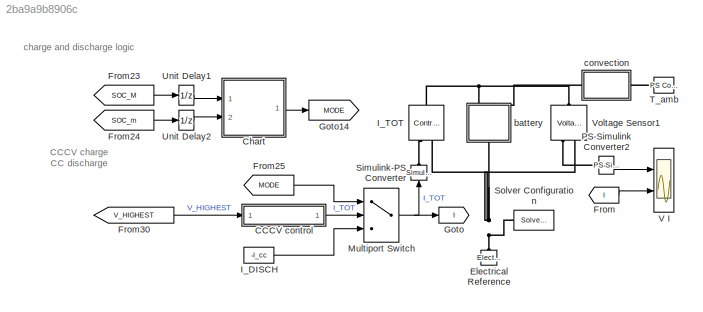
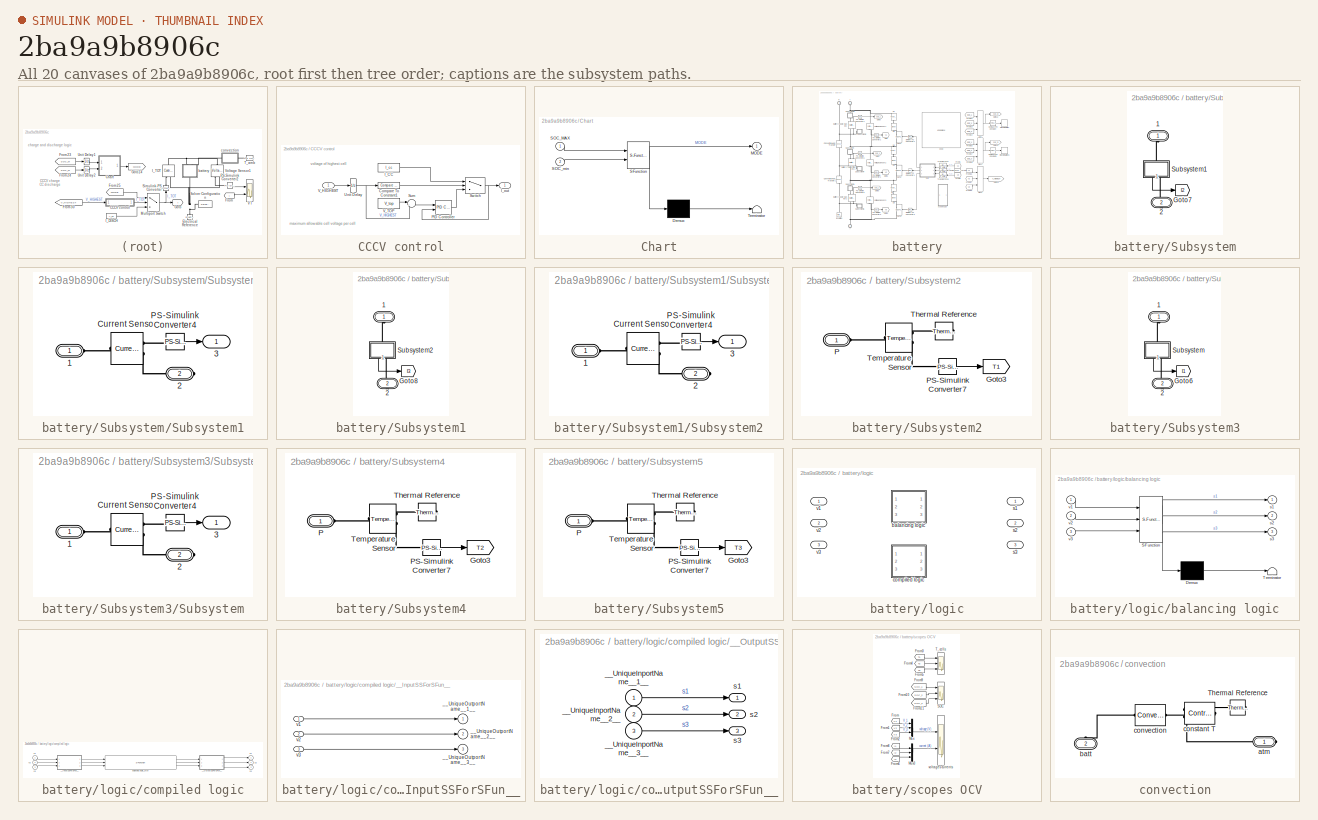
[diagram: thumbnail index - all 20 canvases of the model, root first then tree order]
MODEL slx_2ba9a9b8906c
KIND model
CONFIG AbsTol = 1e-3
CONFIG EnableMultiTasking = on
CONFIG FixedStep = auto
CONFIG MaxStep = .5
CONFIG MinStep = auto
CONFIG PreLoadFcn = passiveBalancing_ini;
CONFIG RelTol = 1e-3
CONFIG SampleTimeConstraint = Unconstrained
CONFIG Solver = ode23t
CONFIG SolverName = ode23t
CONFIG StartTime = 0.0
CONFIG StopTime = 3600 * 4
BLOCK [SubSystem] CCCV control
  Ports = [1, 1]
  RequestExecContextInheritance = off
BLOCK [Reference] CCCV control/Compare To Constant1  REF=simulink/Logic and Bit
Operations/Compare
To Constant
  Ports = [1, 1]
  SourceBlock = simulink/Logic and Bit\nOperations/Compare\nTo Constant
  SourceProductBaseCode = SL
  SourceProductName = Simulink
  SourceType = Compare To Constant
BLOCK [Constant] CCCV control/I_CC
  Value = I_cc
BLOCK [Outport] CCCV control/I_out
  IconDisplay = Port number
BLOCK [Reference] CCCV control/PID Controller  REF=simulink/Continuous/PID Controller
  Ports = [2, 1]
  SourceBlock = simulink/Continuous/PID Controller
  SourceProductBaseCode = SL
  SourceProductName = Simulink
  SourceType = PID 1dof
BLOCK [Sum] CCCV control/Sum
  IconShape = round
  InputSameDT = off
  Inputs = |+-
  OutDataTypeStr = Inherit: Inherit via internal rule
  Ports = [2, 1]
  SaturateOnIntegerOverflow = off
BLOCK [Switch] CCCV control/Switch
  Criteria = u2 > Threshold
  InputSameDT = off
  SaturateOnIntegerOverflow = off
BLOCK [UnitDelay] CCCV control/Unit Delay
  HasFrameUpgradeWarning = on
  SampleTime = -1
BLOCK [Inport] CCCV control/V_HIGHEST
  IconDisplay = Port number
BLOCK [Constant] CCCV control/V_TOP
  Value = V_top
BLOCK [SubSystem] Chart
  BlockKeywords = __PRM__SERIALIZED__DATA__:Stateflow Chart,Stateflow Diagram
  ErrorFcn = Stateflow.Translate.translate
  PermitHierarchicalResolution = ExplicitOnly
  Ports = [2, 1]
  RequestExecContextInheritance = off
  SFBlockType = Chart
  TreatAsAtomicUnit = on
BLOCK [Demux] Chart/ Demux 
  Outputs = 1
  Ports = [1, 1]
BLOCK [S-Function] Chart/ SFunction 
  EnableBusSupport = on
  FunctionName = sf_sfun
  PortCounts = [2 2]
  Ports = [2, 2]
  SFcnIsStateOwnerBlock = off
  SFunctionDeploymentMode = off
  Tag = Stateflow S-Function 3
BLOCK [Terminator] Chart/ Terminator 
BLOCK [Outport] Chart/MODE
  IconDisplay = Port number
BLOCK [Inport] Chart/SOC_MAX
  IconDisplay = Port number
BLOCK [Inport] Chart/SOC_min
  IconDisplay = Port number
  Port = 2
BLOCK [Reference] Electrical Reference  REF=fl_lib/Electrical/Electrical Elements/Electrical Reference
  Ports = [0, 0, 0, 0, 0, 1]
  SourceBlock = fl_lib/Electrical/Electrical Elements/Electrical Reference
  SourceProductBaseCode = SS
  SourceProductName = Simscape
  SourceType = Electrical Reference
BLOCK [From] From
  GotoTag = I
BLOCK [From] From23
  GotoTag = SOC_M
  TagVisibility = global
BLOCK [From] From24
  GotoTag = SOC_m
  TagVisibility = global
BLOCK [From] From25
  GotoTag = MODE
BLOCK [From] From30
  GotoTag = V_HIGHEST
  TagVisibility = global
BLOCK [Goto] Goto
  GotoTag = I
BLOCK [Goto] Goto14
  GotoTag = MODE
BLOCK [Constant] I_DISCH
  Value = -I_cc
BLOCK [Reference] I_TOT  REF=fl_lib/Electrical/Electrical Sources/Controlled Current
Source
  Ports = [0, 0, 0, 0, 0, 1, 2]
  SourceBlock = fl_lib/Electrical/Electrical Sources/Controlled Current\nSource
  SourceProductBaseCode = SS
  SourceProductName = Simscape
  SourceType = Controlled Current\nSource
BLOCK [MultiPortSwitch] Multiport Switch
  DataPortIndices = {1,2}
  DataPortOrder = Specify indices
  DiagnosticForDefault = None
  InputSameDT = off
  Ports = [3, 1]
  SaturateOnIntegerOverflow = off
BLOCK [Reference] PS-Simulink Converter2  REF=nesl_utility/PS-Simulink
Converter
  Ports = [0, 1, 0, 0, 0, 1]
  SourceBlock = nesl_utility/PS-Simulink\nConverter
  SourceProductBaseCode = SS
  SourceProductName = Simscape
  SourceType = PS-Simulink\nConverter
BLOCK [Reference] Simulink-PS Converter  REF=nesl_utility/Simulink-PS
Converter
  Ports = [1, 0, 0, 0, 0, 0, 1]
  SourceBlock = nesl_utility/Simulink-PS\nConverter
  SourceProductBaseCode = SS
  SourceProductName = Simscape
  SourceType = Simulink-PS\nConverter
BLOCK [Reference] Solver Configuration  REF=nesl_utility/Solver
Configuration
  Ports = [0, 0, 0, 0, 0, 0, 1]
  SourceBlock = nesl_utility/Solver\nConfiguration
  SourceProductBaseCode = SS
  SourceProductName = Simscape
  SourceType = Solver\nConfiguration
BLOCK [Reference] T_amb  REF=fl_lib/Physical Signals/Sources/PS Constant
  Ports = [0, 0, 0, 0, 0, 0, 1]
  SourceBlock = fl_lib/Physical Signals/Sources/PS Constant
  SourceProductBaseCode = SS
  SourceProductName = Simscape
  SourceType = PS Constant
BLOCK [UnitDelay] Unit Delay1
  HasFrameUpgradeWarning = on
  InitialCondition = 1
  SampleTime = -1
BLOCK [UnitDelay] Unit Delay2
  HasFrameUpgradeWarning = on
  InitialCondition = 1
  SampleTime = -1
BLOCK [Scope] V I
  Floating = off
  NumInputPorts = 2
  Ports = [2]
  ScopeSpecificationString = Simulink.scopes.TimeScopeBlockCfg('CurrentConfiguration', extmgr.ConfigurationSet(extmgr.Configuration('Core','General UI',true),extmgr.Configuration('Core','Source UI',true),extmgr.Configuration('Sources','WiredSimulink',true,'DataLoggingVariableName','ScopeData1'),extmgr.Configuration('Visuals','Time Domain',true,'SerializedDisplays',{struct('MinYLimReal','10.37584','MaxYLimReal','12.50805','YLa...<+2413ch>
BLOCK [Reference] Voltage Sensor1  REF=fl_lib/Electrical/Electrical Sensors/Voltage Sensor
  Ports = [0, 0, 0, 0, 0, 1, 2]
  SourceBlock = fl_lib/Electrical/Electrical Sensors/Voltage Sensor
  SourceProductBaseCode = SS
  SourceProductName = Simscape
  SourceType = Voltage Sensor
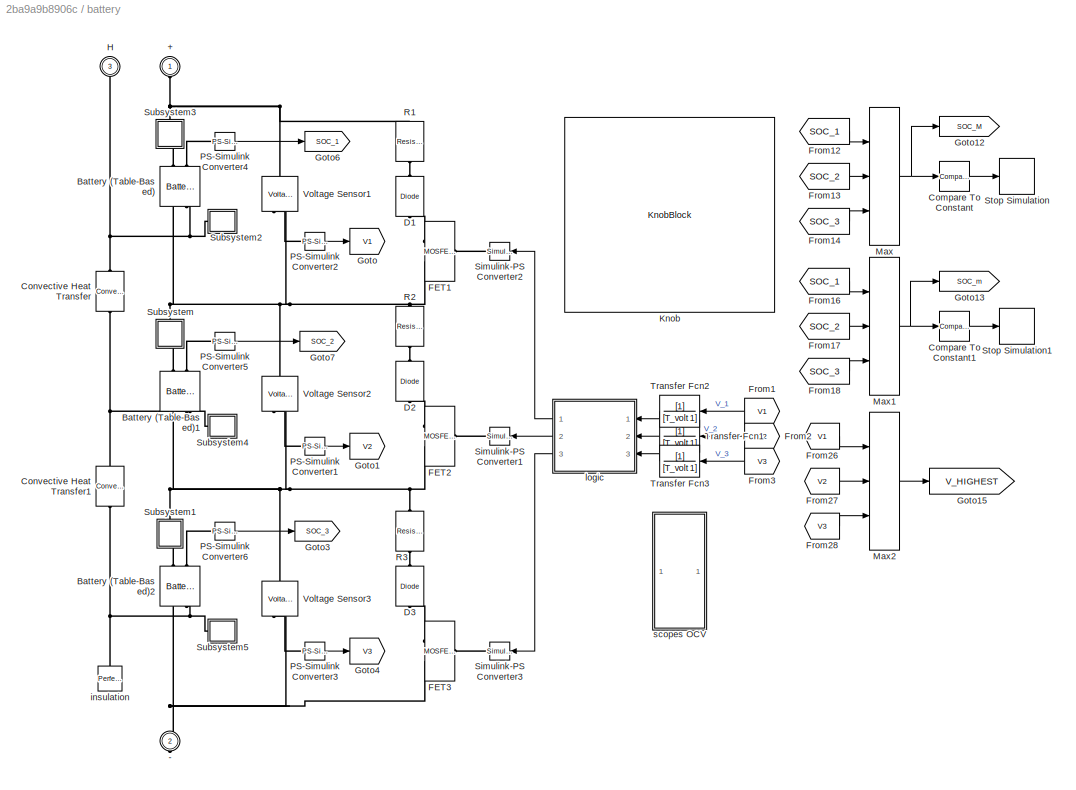
BLOCK [SubSystem] battery
  Ports = [0, 0, 0, 0, 0, 2, 1]
  RequestExecContextInheritance = off
BLOCK [PMIOPort] battery/+
  Side = Left
BLOCK [PMIOPort] battery/-
  Port = 2
  Side = Right
BLOCK [Reference] battery/Battery (Table-Based)  REF=ee_lib/Sources/Battery
(Table-Based)
  Ports = [0, 0, 0, 0, 0, 2, 2]
  SourceBlock = ee_lib/Sources/Battery\n(Table-Based)
  SourceProductBaseCode = PS
  SourceProductName = Simscape Electrical
  SourceType = Battery\n(Table-Based)
BLOCK [Reference] battery/Battery (Table-Based)1  REF=ee_lib/Sources/Battery
(Table-Based)
  Ports = [0, 0, 0, 0, 0, 2, 2]
  SourceBlock = ee_lib/Sources/Battery\n(Table-Based)
  SourceProductBaseCode = PS
  SourceProductName = Simscape Electrical
  SourceType = Battery\n(Table-Based)
BLOCK [Reference] battery/Battery (Table-Based)2  REF=ee_lib/Sources/Battery
(Table-Based)
  Ports = [0, 0, 0, 0, 0, 2, 2]
  SourceBlock = ee_lib/Sources/Battery\n(Table-Based)
  SourceProductBaseCode = PS
  SourceProductName = Simscape Electrical
  SourceType = Battery\n(Table-Based)
BLOCK [Reference] battery/Compare To Constant  REF=simulink/Logic and Bit
Operations/Compare
To Constant
  Ports = [1, 1]
  SourceBlock = simulink/Logic and Bit\nOperations/Compare\nTo Constant
  SourceProductBaseCode = SL
  SourceProductName = Simulink
  SourceType = Compare To Constant
BLOCK [Reference] battery/Compare To Constant1  REF=simulink/Logic and Bit
Operations/Compare
To Constant
  Ports = [1, 1]
  SourceBlock = simulink/Logic and Bit\nOperations/Compare\nTo Constant
  SourceProductBaseCode = SL
  SourceProductName = Simulink
  SourceType = Compare To Constant
BLOCK [Reference] battery/Convective Heat Transfer  REF=fl_lib/Thermal/Thermal Elements/Convective Heat
Transfer
  Ports = [0, 0, 0, 0, 0, 1, 1]
  SourceBlock = fl_lib/Thermal/Thermal Elements/Convective Heat\nTransfer
  SourceProductBaseCode = SS
  SourceProductName = Simscape
  SourceType = Convective Heat\nTransfer
BLOCK [Reference] battery/Convective Heat Transfer1  REF=fl_lib/Thermal/Thermal Elements/Convective Heat
Transfer
  Ports = [0, 0, 0, 0, 0, 1, 1]
  SourceBlock = fl_lib/Thermal/Thermal Elements/Convective Heat\nTransfer
  SourceProductBaseCode = SS
  SourceProductName = Simscape
  SourceType = Convective Heat\nTransfer
BLOCK [Reference] battery/D1  REF=fl_lib/Electrical/Electrical Elements/Diode
  Ports = [0, 0, 0, 0, 0, 1, 1]
  SourceBlock = fl_lib/Electrical/Electrical Elements/Diode
  SourceProductBaseCode = SS
  SourceProductName = Simscape
  SourceType = Diode
BLOCK [Reference] battery/D2  REF=fl_lib/Electrical/Electrical Elements/Diode
  Ports = [0, 0, 0, 0, 0, 1, 1]
  SourceBlock = fl_lib/Electrical/Electrical Elements/Diode
  SourceProductBaseCode = SS
  SourceProductName = Simscape
  SourceType = Diode
BLOCK [Reference] battery/D3  REF=fl_lib/Electrical/Electrical Elements/Diode
  Ports = [0, 0, 0, 0, 0, 1, 1]
  SourceBlock = fl_lib/Electrical/Electrical Elements/Diode
  SourceProductBaseCode = SS
  SourceProductName = Simscape
  SourceType = Diode
BLOCK [Reference] battery/FET1  REF=ee_lib/Semiconductors &
Converters/MOSFET
(Ideal,
Switching)
  Ports = [0, 0, 0, 0, 0, 1, 2]
  SourceBlock = ee_lib/Semiconductors &\nConverters/MOSFET\n(Ideal,\nSwitching)
  SourceProductBaseCode = PS
  SourceProductName = Simscape Electrical
  SourceType = MOSFET\n(Ideal,\nSwitching)
BLOCK [Reference] battery/FET2  REF=ee_lib/Semiconductors &
Converters/MOSFET
(Ideal,
Switching)
  Ports = [0, 0, 0, 0, 0, 1, 2]
  SourceBlock = ee_lib/Semiconductors &\nConverters/MOSFET\n(Ideal,\nSwitching)
  SourceProductBaseCode = PS
  SourceProductName = Simscape Electrical
  SourceType = MOSFET\n(Ideal,\nSwitching)
BLOCK [Reference] battery/FET3  REF=ee_lib/Semiconductors &
Converters/MOSFET
(Ideal,
Switching)
  Ports = [0, 0, 0, 0, 0, 1, 2]
  SourceBlock = ee_lib/Semiconductors &\nConverters/MOSFET\n(Ideal,\nSwitching)
  SourceProductBaseCode = PS
  SourceProductName = Simscape Electrical
  SourceType = MOSFET\n(Ideal,\nSwitching)
BLOCK [From] battery/From1
  GotoTag = V1
  TagVisibility = global
BLOCK [From] battery/From12
  GotoTag = SOC_1
  TagVisibility = global
BLOCK [From] battery/From13
  GotoTag = SOC_2
  TagVisibility = global
BLOCK [From] battery/From14
  GotoTag = SOC_3
  TagVisibility = global
BLOCK [From] battery/From16
  GotoTag = SOC_1
  TagVisibility = global
BLOCK [From] battery/From17
  GotoTag = SOC_2
  TagVisibility = global
BLOCK [From] battery/From18
  GotoTag = SOC_3
  TagVisibility = global
BLOCK [From] battery/From2
  GotoTag = V2
  TagVisibility = global
BLOCK [From] battery/From26
  GotoTag = V1
  TagVisibility = global
BLOCK [From] battery/From27
  GotoTag = V2
  TagVisibility = global
BLOCK [From] battery/From28
  GotoTag = V3
  TagVisibility = global
BLOCK [From] battery/From3
  GotoTag = V3
  TagVisibility = global
BLOCK [Goto] battery/Goto
  GotoTag = V1
  TagVisibility = global
BLOCK [Goto] battery/Goto1
  GotoTag = V2
  TagVisibility = global
BLOCK [Goto] battery/Goto12
  GotoTag = SOC_M
  TagVisibility = global
BLOCK [Goto] battery/Goto13
  GotoTag = SOC_m
  TagVisibility = global
BLOCK [Goto] battery/Goto15
  GotoTag = V_HIGHEST
  TagVisibility = global
BLOCK [Goto] battery/Goto3
  GotoTag = SOC_3
  TagVisibility = global
BLOCK [Goto] battery/Goto4
  GotoTag = V3
  TagVisibility = global
BLOCK [Goto] battery/Goto6
  GotoTag = SOC_1
  TagVisibility = global
BLOCK [Goto] battery/Goto7
  GotoTag = SOC_2
  TagVisibility = global
BLOCK [PMIOPort] battery/H
  Port = 3
  Side = Left
BLOCK [KnobBlock] battery/Knob
  ScaleMax = 40
  ScaleMin = 2
  TickInterval = 2
BLOCK [MinMax] battery/Max
  Function = max
  InputSameDT = off
  Inputs = 3
  Ports = [3, 1]
  SaturateOnIntegerOverflow = off
BLOCK [MinMax] battery/Max1
  InputSameDT = off
  Inputs = 3
  Ports = [3, 1]
  SaturateOnIntegerOverflow = off
BLOCK [MinMax] battery/Max2
  Function = max
  InputSameDT = off
  Inputs = 3
  Ports = [3, 1]
  SaturateOnIntegerOverflow = off
BLOCK [Reference] battery/PS-Simulink Converter1  REF=nesl_utility/PS-Simulink
Converter
  Ports = [0, 1, 0, 0, 0, 1]
  SourceBlock = nesl_utility/PS-Simulink\nConverter
  SourceProductBaseCode = SS
  SourceProductName = Simscape
  SourceType = PS-Simulink\nConverter
BLOCK [Reference] battery/PS-Simulink Converter2  REF=nesl_utility/PS-Simulink
Converter
  Ports = [0, 1, 0, 0, 0, 1]
  SourceBlock = nesl_utility/PS-Simulink\nConverter
  SourceProductBaseCode = SS
  SourceProductName = Simscape
  SourceType = PS-Simulink\nConverter
BLOCK [Reference] battery/PS-Simulink Converter3  REF=nesl_utility/PS-Simulink
Converter
  Ports = [0, 1, 0, 0, 0, 1]
  SourceBlock = nesl_utility/PS-Simulink\nConverter
  SourceProductBaseCode = SS
  SourceProductName = Simscape
  SourceType = PS-Simulink\nConverter
BLOCK [Reference] battery/PS-Simulink Converter4  REF=nesl_utility/PS-Simulink
Converter
  Ports = [0, 1, 0, 0, 0, 1]
  SourceBlock = nesl_utility/PS-Simulink\nConverter
  SourceProductBaseCode = SS
  SourceProductName = Simscape
  SourceType = PS-Simulink\nConverter
BLOCK [Reference] battery/PS-Simulink Converter5  REF=nesl_utility/PS-Simulink
Converter
  Ports = [0, 1, 0, 0, 0, 1]
  SourceBlock = nesl_utility/PS-Simulink\nConverter
  SourceProductBaseCode = SS
  SourceProductName = Simscape
  SourceType = PS-Simulink\nConverter
BLOCK [Reference] battery/PS-Simulink Converter6  REF=nesl_utility/PS-Simulink
Converter
  Ports = [0, 1, 0, 0, 0, 1]
  SourceBlock = nesl_utility/PS-Simulink\nConverter
  SourceProductBaseCode = SS
  SourceProductName = Simscape
  SourceType = PS-Simulink\nConverter
BLOCK [Reference] battery/R1  REF=fl_lib/Electrical/Electrical Elements/Resistor
  Ports = [0, 0, 0, 0, 0, 1, 1]
  SourceBlock = fl_lib/Electrical/Electrical Elements/Resistor
  SourceProductBaseCode = SS
  SourceProductName = Simscape
  SourceType = Resistor
BLOCK [Reference] battery/R2  REF=fl_lib/Electrical/Electrical Elements/Resistor
  Ports = [0, 0, 0, 0, 0, 1, 1]
  SourceBlock = fl_lib/Electrical/Electrical Elements/Resistor
  SourceProductBaseCode = SS
  SourceProductName = Simscape
  SourceType = Resistor
BLOCK [Reference] battery/R3  REF=fl_lib/Electrical/Electrical Elements/Resistor
  Ports = [0, 0, 0, 0, 0, 1, 1]
  SourceBlock = fl_lib/Electrical/Electrical Elements/Resistor
  SourceProductBaseCode = SS
  SourceProductName = Simscape
  SourceType = Resistor
BLOCK [Reference] battery/Simulink-PS Converter1  REF=nesl_utility/Simulink-PS
Converter
  Ports = [1, 0, 0, 0, 0, 0, 1]
  SourceBlock = nesl_utility/Simulink-PS\nConverter
  SourceProductBaseCode = SS
  SourceProductName = Simscape
  SourceType = Simulink-PS\nConverter
BLOCK [Reference] battery/Simulink-PS Converter2  REF=nesl_utility/Simulink-PS
Converter
  Ports = [1, 0, 0, 0, 0, 0, 1]
  SourceBlock = nesl_utility/Simulink-PS\nConverter
  SourceProductBaseCode = SS
  SourceProductName = Simscape
  SourceType = Simulink-PS\nConverter
BLOCK [Reference] battery/Simulink-PS Converter3  REF=nesl_utility/Simulink-PS
Converter
  Ports = [1, 0, 0, 0, 0, 0, 1]
  SourceBlock = nesl_utility/Simulink-PS\nConverter
  SourceProductBaseCode = SS
  SourceProductName = Simscape
  SourceType = Simulink-PS\nConverter
BLOCK [Stop] battery/Stop Simulation
BLOCK [Stop] battery/Stop Simulation1
BLOCK [SubSystem] battery/Subsystem
  Ports = [0, 0, 0, 0, 0, 1, 1]
  RequestExecContextInheritance = off
BLOCK [PMIOPort] battery/Subsystem/1
  Side = Left
BLOCK [PMIOPort] battery/Subsystem/2
  Port = 2
  Side = Right
BLOCK [Goto] battery/Subsystem/Goto7
  GotoTag = I2
  TagVisibility = global
BLOCK [SubSystem] battery/Subsystem/Subsystem1
  Ports = [0, 1, 0, 0, 0, 1, 1]
  RequestExecContextInheritance = off
BLOCK [PMIOPort] battery/Subsystem/Subsystem1/1
  Side = Left
BLOCK [PMIOPort] battery/Subsystem/Subsystem1/2
  Port = 2
  Side = Right
BLOCK [Outport] battery/Subsystem/Subsystem1/3
  IconDisplay = Port number
  VectorParamsAs1DForOutWhenUnconnected = off
BLOCK [Reference] battery/Subsystem/Subsystem1/Current Sensor  REF=fl_lib/Electrical/Electrical Sensors/Current Sensor
  Ports = [0, 0, 0, 0, 0, 1, 2]
  SourceBlock = fl_lib/Electrical/Electrical Sensors/Current Sensor
  SourceProductBaseCode = SS
  SourceProductName = Simscape
  SourceType = Current Sensor
BLOCK [Reference] battery/Subsystem/Subsystem1/PS-Simulink Converter4  REF=nesl_utility/PS-Simulink
Converter
  Ports = [0, 1, 0, 0, 0, 1]
  SourceBlock = nesl_utility/PS-Simulink\nConverter
  SourceProductBaseCode = SS
  SourceProductName = Simscape
  SourceType = PS-Simulink\nConverter
BLOCK [SubSystem] battery/Subsystem1
  Ports = [0, 0, 0, 0, 0, 1, 1]
  RequestExecContextInheritance = off
BLOCK [PMIOPort] battery/Subsystem1/1
  Side = Left
BLOCK [PMIOPort] battery/Subsystem1/2
  Port = 2
  Side = Right
BLOCK [Goto] battery/Subsystem1/Goto8
  GotoTag = I3
  TagVisibility = global
BLOCK [SubSystem] battery/Subsystem1/Subsystem2
  Ports = [0, 1, 0, 0, 0, 1, 1]
  RequestExecContextInheritance = off
BLOCK [PMIOPort] battery/Subsystem1/Subsystem2/1
  Side = Left
BLOCK [PMIOPort] battery/Subsystem1/Subsystem2/2
  Port = 2
  Side = Right
BLOCK [Outport] battery/Subsystem1/Subsystem2/3
  IconDisplay = Port number
  VectorParamsAs1DForOutWhenUnconnected = off
BLOCK [Reference] battery/Subsystem1/Subsystem2/Current Sensor  REF=fl_lib/Electrical/Electrical Sensors/Current Sensor
  Ports = [0, 0, 0, 0, 0, 1, 2]
  SourceBlock = fl_lib/Electrical/Electrical Sensors/Current Sensor
  SourceProductBaseCode = SS
  SourceProductName = Simscape
  SourceType = Current Sensor
BLOCK [Reference] battery/Subsystem1/Subsystem2/PS-Simulink Converter4  REF=nesl_utility/PS-Simulink
Converter
  Ports = [0, 1, 0, 0, 0, 1]
  SourceBlock = nesl_utility/PS-Simulink\nConverter
  SourceProductBaseCode = SS
  SourceProductName = Simscape
  SourceType = PS-Simulink\nConverter
BLOCK [SubSystem] battery/Subsystem2
  Ports = [0, 0, 0, 0, 0, 1]
  RequestExecContextInheritance = off
BLOCK [Goto] battery/Subsystem2/Goto3
  GotoTag = T1
  TagVisibility = global
BLOCK [PMIOPort] battery/Subsystem2/P
  Side = Left
BLOCK [Reference] battery/Subsystem2/PS-Simulink Converter7  REF=nesl_utility/PS-Simulink
Converter
  Ports = [0, 1, 0, 0, 0, 1]
  SourceBlock = nesl_utility/PS-Simulink\nConverter
  SourceProductBaseCode = SS
  SourceProductName = Simscape
  SourceType = PS-Simulink\nConverter
BLOCK [Reference] battery/Subsystem2/Temperature Sensor  REF=fl_lib/Thermal/Thermal Sensors/Temperature Sensor
  Ports = [0, 0, 0, 0, 0, 1, 2]
  SourceBlock = fl_lib/Thermal/Thermal Sensors/Temperature Sensor
  SourceProductBaseCode = SS
  SourceProductName = Simscape
  SourceType = Temperature Sensor
BLOCK [Reference] battery/Subsystem2/Thermal Reference  REF=fl_lib/Thermal/Thermal Elements/Thermal Reference
  Ports = [0, 0, 0, 0, 0, 1]
  SourceBlock = fl_lib/Thermal/Thermal Elements/Thermal Reference
  SourceProductBaseCode = SS
  SourceProductName = Simscape
  SourceType = Thermal Reference
BLOCK [SubSystem] battery/Subsystem3
  Ports = [0, 0, 0, 0, 0, 1, 1]
  RequestExecContextInheritance = off
BLOCK [PMIOPort] battery/Subsystem3/1
  Side = Left
BLOCK [PMIOPort] battery/Subsystem3/2
  Port = 2
  Side = Right
BLOCK [Goto] battery/Subsystem3/Goto6
  GotoTag = I1
  TagVisibility = global
BLOCK [SubSystem] battery/Subsystem3/Subsystem
  Ports = [0, 1, 0, 0, 0, 1, 1]
  RequestExecContextInheritance = off
BLOCK [PMIOPort] battery/Subsystem3/Subsystem/1
  Side = Left
BLOCK [PMIOPort] battery/Subsystem3/Subsystem/2
  Port = 2
  Side = Right
BLOCK [Outport] battery/Subsystem3/Subsystem/3
  IconDisplay = Port number
  VectorParamsAs1DForOutWhenUnconnected = off
BLOCK [Reference] battery/Subsystem3/Subsystem/Current Sensor  REF=fl_lib/Electrical/Electrical Sensors/Current Sensor
  Ports = [0, 0, 0, 0, 0, 1, 2]
  SourceBlock = fl_lib/Electrical/Electrical Sensors/Current Sensor
  SourceProductBaseCode = SS
  SourceProductName = Simscape
  SourceType = Current Sensor
BLOCK [Reference] battery/Subsystem3/Subsystem/PS-Simulink Converter4  REF=nesl_utility/PS-Simulink
Converter
  Ports = [0, 1, 0, 0, 0, 1]
  SourceBlock = nesl_utility/PS-Simulink\nConverter
  SourceProductBaseCode = SS
  SourceProductName = Simscape
  SourceType = PS-Simulink\nConverter
BLOCK [SubSystem] battery/Subsystem4
  Ports = [0, 0, 0, 0, 0, 1]
  RequestExecContextInheritance = off
BLOCK [Goto] battery/Subsystem4/Goto3
  GotoTag = T2
  TagVisibility = global
BLOCK [PMIOPort] battery/Subsystem4/P
  Side = Left
BLOCK [Reference] battery/Subsystem4/PS-Simulink Converter7  REF=nesl_utility/PS-Simulink
Converter
  Ports = [0, 1, 0, 0, 0, 1]
  SourceBlock = nesl_utility/PS-Simulink\nConverter
  SourceProductBaseCode = SS
  SourceProductName = Simscape
  SourceType = PS-Simulink\nConverter
BLOCK [Reference] battery/Subsystem4/Temperature Sensor  REF=fl_lib/Thermal/Thermal Sensors/Temperature Sensor
  Ports = [0, 0, 0, 0, 0, 1, 2]
  SourceBlock = fl_lib/Thermal/Thermal Sensors/Temperature Sensor
  SourceProductBaseCode = SS
  SourceProductName = Simscape
  SourceType = Temperature Sensor
BLOCK [Reference] battery/Subsystem4/Thermal Reference  REF=fl_lib/Thermal/Thermal Elements/Thermal Reference
  Ports = [0, 0, 0, 0, 0, 1]
  SourceBlock = fl_lib/Thermal/Thermal Elements/Thermal Reference
  SourceProductBaseCode = SS
  SourceProductName = Simscape
  SourceType = Thermal Reference
BLOCK [SubSystem] battery/Subsystem5
  Ports = [0, 0, 0, 0, 0, 1]
  RequestExecContextInheritance = off
BLOCK [Goto] battery/Subsystem5/Goto3
  GotoTag = T3
  TagVisibility = global
BLOCK [PMIOPort] battery/Subsystem5/P
  Side = Left
BLOCK [Reference] battery/Subsystem5/PS-Simulink Converter7  REF=nesl_utility/PS-Simulink
Converter
  Ports = [0, 1, 0, 0, 0, 1]
  SourceBlock = nesl_utility/PS-Simulink\nConverter
  SourceProductBaseCode = SS
  SourceProductName = Simscape
  SourceType = PS-Simulink\nConverter
BLOCK [Reference] battery/Subsystem5/Temperature Sensor  REF=fl_lib/Thermal/Thermal Sensors/Temperature Sensor
  Ports = [0, 0, 0, 0, 0, 1, 2]
  SourceBlock = fl_lib/Thermal/Thermal Sensors/Temperature Sensor
  SourceProductBaseCode = SS
  SourceProductName = Simscape
  SourceType = Temperature Sensor
BLOCK [Reference] battery/Subsystem5/Thermal Reference  REF=fl_lib/Thermal/Thermal Elements/Thermal Reference
  Ports = [0, 0, 0, 0, 0, 1]
  SourceBlock = fl_lib/Thermal/Thermal Elements/Thermal Reference
  SourceProductBaseCode = SS
  SourceProductName = Simscape
  SourceType = Thermal Reference
BLOCK [TransferFcn] battery/Transfer Fcn1
  Denominator = [T_volt 1]
BLOCK [TransferFcn] battery/Transfer Fcn2
  Denominator = [T_volt 1]
BLOCK [TransferFcn] battery/Transfer Fcn3
  Denominator = [T_volt 1]
BLOCK [Reference] battery/Voltage Sensor1  REF=fl_lib/Electrical/Electrical Sensors/Voltage Sensor
  Ports = [0, 0, 0, 0, 0, 1, 2]
  SourceBlock = fl_lib/Electrical/Electrical Sensors/Voltage Sensor
  SourceProductBaseCode = SS
  SourceProductName = Simscape
  SourceType = Voltage Sensor
BLOCK [Reference] battery/Voltage Sensor2  REF=fl_lib/Electrical/Electrical Sensors/Voltage Sensor
  Ports = [0, 0, 0, 0, 0, 1, 2]
  SourceBlock = fl_lib/Electrical/Electrical Sensors/Voltage Sensor
  SourceProductBaseCode = SS
  SourceProductName = Simscape
  SourceType = Voltage Sensor
BLOCK [Reference] battery/Voltage Sensor3  REF=fl_lib/Electrical/Electrical Sensors/Voltage Sensor
  Ports = [0, 0, 0, 0, 0, 1, 2]
  SourceBlock = fl_lib/Electrical/Electrical Sensors/Voltage Sensor
  SourceProductBaseCode = SS
  SourceProductName = Simscape
  SourceType = Voltage Sensor
BLOCK [Reference] battery/insulation  REF=fl_lib/Thermal/Thermal Elements/Perfect Insulator
  Ports = [0, 0, 0, 0, 0, 1]
  SourceBlock = fl_lib/Thermal/Thermal Elements/Perfect Insulator
  SourceProductBaseCode = SS
  SourceProductName = Simscape
  SourceType = Perfect Insulator
BLOCK [SubSystem] battery/logic
  LabelModeActiveChoice = (default)
  Ports = [3, 3]
  RequestExecContextInheritance = off
  Variant = on
  VariantControlMode = Label
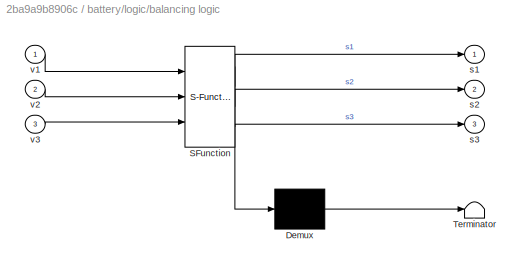
BLOCK [SubSystem] battery/logic/balancing logic
  ErrorFcn = Stateflow.Translate.translate
  PermitHierarchicalResolution = ExplicitOnly
  Ports = [3, 3]
  RequestExecContextInheritance = off
  SFBlockType = Chart
  TreatAsAtomicUnit = on
  VariantControl = (default)
BLOCK [Demux] battery/logic/balancing logic/ Demux 
  Outputs = 1
  Ports = [1, 1]
BLOCK [S-Function] battery/logic/balancing logic/ SFunction 
  EnableBusSupport = on
  FunctionName = sf_sfun
  Parameters = deltaV
  PortCounts = [3 4]
  Ports = [3, 4]
  SFcnIsStateOwnerBlock = off
  SFunctionDeploymentMode = off
  Tag = Stateflow S-Function 2
BLOCK [Terminator] battery/logic/balancing logic/ Terminator 
BLOCK [Outport] battery/logic/balancing logic/s1
  IconDisplay = Port number
  VectorParamsAs1DForOutWhenUnconnected = off
BLOCK [Outport] battery/logic/balancing logic/s2
  IconDisplay = Port number
  Port = 2
  VectorParamsAs1DForOutWhenUnconnected = off
BLOCK [Outport] battery/logic/balancing logic/s3
  IconDisplay = Port number
  Port = 3
  VectorParamsAs1DForOutWhenUnconnected = off
BLOCK [Inport] battery/logic/balancing logic/v1
  IconDisplay = Port number
BLOCK [Inport] battery/logic/balancing logic/v2
  IconDisplay = Port number
  Port = 2
BLOCK [Inport] battery/logic/balancing logic/v3
  IconDisplay = Port number
  Port = 3
BLOCK [SubSystem] battery/logic/compiled logic
  Ports = [3, 3]
  RequestExecContextInheritance = off
  VariantControl = Variant
BLOCK [SubSystem] battery/logic/compiled logic/__InputSSForSFun__
  PermitHierarchicalResolution = ExplicitOnly
  Ports = [3, 3]
  RequestExecContextInheritance = off
BLOCK [Outport] battery/logic/compiled logic/__InputSSForSFun__/__UniqueOutportName__1__
  IconDisplay = Port number
  VectorParamsAs1DForOutWhenUnconnected = off
BLOCK [Outport] battery/logic/compiled logic/__InputSSForSFun__/__UniqueOutportName__2__
  IconDisplay = Port number
  Port = 2
  VectorParamsAs1DForOutWhenUnconnected = off
BLOCK [Outport] battery/logic/compiled logic/__InputSSForSFun__/__UniqueOutportName__3__
  IconDisplay = Port number
  Port = 3
  VectorParamsAs1DForOutWhenUnconnected = off
BLOCK [Inport] battery/logic/compiled logic/__InputSSForSFun__/v1
  IconDisplay = Port number
BLOCK [Inport] battery/logic/compiled logic/__InputSSForSFun__/v2
  IconDisplay = Port number
  Port = 2
BLOCK [Inport] battery/logic/compiled logic/__InputSSForSFun__/v3
  IconDisplay = Port number
  Port = 3
BLOCK [SubSystem] battery/logic/compiled logic/__OutputSSForSFun__
  PermitHierarchicalResolution = ExplicitOnly
  Ports = [3, 3]
  RequestExecContextInheritance = off
BLOCK [Inport] battery/logic/compiled logic/__OutputSSForSFun__/__UniqueInportName__1__
  IconDisplay = Port number
BLOCK [Inport] battery/logic/compiled logic/__OutputSSForSFun__/__UniqueInportName__2__
  IconDisplay = Port number
  Port = 2
BLOCK [Inport] battery/logic/compiled logic/__OutputSSForSFun__/__UniqueInportName__3__
  IconDisplay = Port number
  Port = 3
BLOCK [Outport] battery/logic/compiled logic/__OutputSSForSFun__/s1
  IconDisplay = Port number
  VectorParamsAs1DForOutWhenUnconnected = off
BLOCK [Outport] battery/logic/compiled logic/__OutputSSForSFun__/s2
  IconDisplay = Port number
  Port = 2
  VectorParamsAs1DForOutWhenUnconnected = off
BLOCK [Outport] battery/logic/compiled logic/__OutputSSForSFun__/s3
  IconDisplay = Port number
  Port = 3
  VectorParamsAs1DForOutWhenUnconnected = off
BLOCK [S-Function] battery/logic/compiled logic/balancing logic_sfcn
  CopyFcn = if ~strcmp(get_param(gcb,'Linkstatus'),'none') && ...\n~strcmp(get_param(gcb,'Linkstatus'),'implicit')      \n  set_param(gcb,'LinkStatus','none');                \nend
  EnableBusSupport = off
  FunctionName = balancing_sf
  Ports = [3, 3]
  SFcnIsStateOwnerBlock = off
  SFunctionDeploymentMode = off
BLOCK [Outport] battery/logic/compiled logic/s1
  IconDisplay = Port number
  VectorParamsAs1DForOutWhenUnconnected = off
BLOCK [Outport] battery/logic/compiled logic/s2
  IconDisplay = Port number
  Port = 2
  VectorParamsAs1DForOutWhenUnconnected = off
BLOCK [Outport] battery/logic/compiled logic/s3
  IconDisplay = Port number
  Port = 3
  VectorParamsAs1DForOutWhenUnconnected = off
BLOCK [Inport] battery/logic/compiled logic/v1
  IconDisplay = Port number
BLOCK [Inport] battery/logic/compiled logic/v2
  IconDisplay = Port number
  Port = 2
BLOCK [Inport] battery/logic/compiled logic/v3
  IconDisplay = Port number
  Port = 3
BLOCK [Outport] battery/logic/s1
  IconDisplay = Port number
  VectorParamsAs1DForOutWhenUnconnected = off
BLOCK [Outport] battery/logic/s2
  IconDisplay = Port number
  Port = 2
  VectorParamsAs1DForOutWhenUnconnected = off
BLOCK [Outport] battery/logic/s3
  IconDisplay = Port number
  Port = 3
  VectorParamsAs1DForOutWhenUnconnected = off
BLOCK [Inport] battery/logic/v1
  IconDisplay = Port number
BLOCK [Inport] battery/logic/v2
  IconDisplay = Port number
  Port = 2
BLOCK [Inport] battery/logic/v3
  IconDisplay = Port number
  Port = 3
BLOCK [SubSystem] battery/scopes OCV
  Ports = []
  RequestExecContextInheritance = off
BLOCK [From] battery/scopes OCV/From
  GotoTag = V1
  TagVisibility = global
BLOCK [From] battery/scopes OCV/From1
  GotoTag = V2
  TagVisibility = global
BLOCK [From] battery/scopes OCV/From10
  GotoTag = SOC_2
  TagVisibility = global
BLOCK [From] battery/scopes OCV/From11
  GotoTag = SOC_3
  TagVisibility = global
BLOCK [From] battery/scopes OCV/From2
  GotoTag = V3
  TagVisibility = global
BLOCK [From] battery/scopes OCV/From3
  GotoTag = T1
  TagVisibility = global
BLOCK [From] battery/scopes OCV/From4
  GotoTag = T2
  TagVisibility = global
BLOCK [From] battery/scopes OCV/From5
  GotoTag = T3
  TagVisibility = global
BLOCK [From] battery/scopes OCV/From6
  GotoTag = I3
  TagVisibility = global
BLOCK [From] battery/scopes OCV/From7
  GotoTag = I2
  TagVisibility = global
BLOCK [From] battery/scopes OCV/From8
  GotoTag = I1
  TagVisibility = global
BLOCK [From] battery/scopes OCV/From9
  GotoTag = SOC_1
  TagVisibility = global
BLOCK [Mux] battery/scopes OCV/Mux
  DisplayOption = bar
  Inputs = 3
  Ports = [3, 1]
BLOCK [Mux] battery/scopes OCV/Mux3
  DisplayOption = bar
  Inputs = 3
  Ports = [3, 1]
BLOCK [Scope] battery/scopes OCV/SOC
  Floating = off
  NumInputPorts = 3
  Ports = [3]
  ScopeSpecificationString = Simulink.scopes.TimeScopeBlockCfg('CurrentConfiguration', extmgr.ConfigurationSet(extmgr.Configuration('Core','General UI',true),extmgr.Configuration('Core','Source UI',true),extmgr.Configuration('Sources','WiredSimulink',true,'DataLoggingVariableName','ScopeData2'),extmgr.Configuration('Visuals','Time Domain',true,'SerializedDisplays',{struct('MinYLimReal','0.10841','MaxYLimReal','1.02153','YLabe...<+2014ch>
BLOCK [Scope] battery/scopes OCV/T_cells
  Floating = off
  NumInputPorts = 3
  Ports = [3]
  ScopeSpecificationString = Simulink.scopes.TimeScopeBlockCfg('CurrentConfiguration', extmgr.ConfigurationSet(extmgr.Configuration('Core','General UI',true),extmgr.Configuration('Core','Source UI',true),extmgr.Configuration('Sources','WiredSimulink',true,'DataLoggingVariableName','ScopeData1'),extmgr.Configuration('Visuals','Time Domain',true,'SerializedDisplays',{struct('MinYLimReal','16.75366','MaxYLimReal','49.21702','YLa...<+1902ch>
BLOCK [Scope] battery/scopes OCV/voltages currents
  Floating = off
  NumInputPorts = 2
  Ports = [2]
  ScopeSpecificationString = Simulink.scopes.TimeScopeBlockCfg('CurrentConfiguration', extmgr.ConfigurationSet(extmgr.Configuration('Core','General UI',true),extmgr.Configuration('Core','Source UI',true),extmgr.Configuration('Sources','WiredSimulink',true,'DataLoggingVariableName','ScopeData2'),extmgr.Configuration('Visuals','Time Domain',true,'SerializedDisplays',{struct('MinYLimReal','3.44388','MaxYLimReal','4.17568','YLabe...<+2345ch>
BLOCK [SubSystem] convection
  Ports = [0, 0, 0, 0, 0, 1, 1]
  RequestExecContextInheritance = off
BLOCK [Reference] convection/Thermal Reference  REF=fl_lib/Thermal/Thermal Elements/Thermal Reference
  Ports = [0, 0, 0, 0, 0, 1]
  SourceBlock = fl_lib/Thermal/Thermal Elements/Thermal Reference
  SourceProductBaseCode = SS
  SourceProductName = Simscape
  SourceType = Thermal Reference
BLOCK [PMIOPort] convection/atm
  Side = Right
BLOCK [PMIOPort] convection/batt
  Port = 2
  Side = Left
BLOCK [Reference] convection/constant T  REF=fl_lib/Thermal/Thermal Sources/Controlled
Temperature Source
  Ports = [0, 0, 0, 0, 0, 1, 2]
  SourceBlock = fl_lib/Thermal/Thermal Sources/Controlled\nTemperature Source
  SourceProductBaseCode = SS
  SourceProductName = Simscape
  SourceType = Controlled\nTemperature Source
BLOCK [Reference] convection/convection  REF=fl_lib/Thermal/Thermal Elements/Convective Heat
Transfer
  Ports = [0, 0, 0, 0, 0, 1, 1]
  SourceBlock = fl_lib/Thermal/Thermal Elements/Convective Heat\nTransfer
  SourceProductBaseCode = SS
  SourceProductName = Simscape
  SourceType = Convective Heat\nTransfer
ANNOTATION (root): CCCV charge CC discharge
ANNOTATION (root): charge and discharge logic
ANNOTATION CCCV control: maximum allowable cell voltage per cell
ANNOTATION CCCV control: voltage of highest cell
LINE CCCV control/Compare To Constant1:1 -> CCCV control/Switch:2
LINE CCCV control/I_CC:1 -> CCCV control/Switch:1
LINE CCCV control/PID Controller:1 -> CCCV control/Switch:3
LINE CCCV control/Sum:1 -> CCCV control/PID Controller:1
NET CCCV control/Switch:1 -> CCCV control/I_out:1, CCCV control/PID Controller:2
NET CCCV control/Unit Delay:1 -> CCCV control/Compare To Constant1:1, CCCV control/Sum:2
LINE CCCV control/V_HIGHEST:1 -> CCCV control/Unit Delay:1
LINE CCCV control/V_TOP:1 -> CCCV control/Sum:1
LINE CCCV control:1 -> Multiport Switch:2
LINE Chart:1 -> Goto14:1
LINE From23:1 -> Unit Delay1:1
LINE From24:1 -> Unit Delay2:1
LINE From25:1 -> Multiport Switch:1
LINE From30:1 -> CCCV control:1
LINE From:1 -> V I:2
LINE I_DISCH:1 -> Multiport Switch:3
NET Multiport Switch:1 -> Goto:1, Simulink-PS Converter:1
LINE PS-Simulink Converter2:1 -> V I:1
LINE Unit Delay1:1 -> Chart:1
LINE Unit Delay2:1 -> Chart:2
LINE battery/Compare To Constant1:1 -> battery/Stop Simulation1:1
LINE battery/Compare To Constant:1 -> battery/Stop Simulation:1
LINE battery/From12:1 -> battery/Max:1
LINE battery/From13:1 -> battery/Max:2
LINE battery/From14:1 -> battery/Max:3
LINE battery/From16:1 -> battery/Max1:1
LINE battery/From17:1 -> battery/Max1:2
LINE battery/From18:1 -> battery/Max1:3
LINE battery/From1:1 -> battery/Transfer Fcn2:1
LINE battery/From26:1 -> battery/Max2:1
LINE battery/From27:1 -> battery/Max2:2
LINE battery/From28:1 -> battery/Max2:3
LINE battery/From2:1 -> battery/Transfer Fcn1:1
LINE battery/From3:1 -> battery/Transfer Fcn3:1
NET battery/Max1:1 -> battery/Compare To Constant1:1, battery/Goto13:1
LINE battery/Max2:1 -> battery/Goto15:1
NET battery/Max:1 -> battery/Compare To Constant:1, battery/Goto12:1
LINE battery/PS-Simulink Converter1:1 -> battery/Goto1:1
LINE battery/PS-Simulink Converter2:1 -> battery/Goto:1
LINE battery/PS-Simulink Converter3:1 -> battery/Goto4:1
LINE battery/PS-Simulink Converter4:1 -> battery/Goto6:1
LINE battery/PS-Simulink Converter5:1 -> battery/Goto7:1
LINE battery/PS-Simulink Converter6:1 -> battery/Goto3:1
LINE battery/Subsystem/Subsystem1/PS-Simulink Converter4:1 -> battery/Subsystem/Subsystem1/3:1
LINE battery/Subsystem/Subsystem1:1 -> battery/Subsystem/Goto7:1
LINE battery/Subsystem1/Subsystem2/PS-Simulink Converter4:1 -> battery/Subsystem1/Subsystem2/3:1
LINE battery/Subsystem1/Subsystem2:1 -> battery/Subsystem1/Goto8:1
LINE battery/Subsystem2/PS-Simulink Converter7:1 -> battery/Subsystem2/Goto3:1
LINE battery/Subsystem3/Subsystem/PS-Simulink Converter4:1 -> battery/Subsystem3/Subsystem/3:1
LINE battery/Subsystem3/Subsystem:1 -> battery/Subsystem3/Goto6:1
LINE battery/Subsystem4/PS-Simulink Converter7:1 -> battery/Subsystem4/Goto3:1
LINE battery/Subsystem5/PS-Simulink Converter7:1 -> battery/Subsystem5/Goto3:1
LINE battery/Transfer Fcn1:1 -> battery/logic:2
LINE battery/Transfer Fcn2:1 -> battery/logic:1
LINE battery/Transfer Fcn3:1 -> battery/logic:3
LINE battery/logic/compiled logic/__InputSSForSFun__/v1:1 -> battery/logic/compiled logic/__InputSSForSFun__/__UniqueOutportName__1__:1
LINE battery/logic/compiled logic/__InputSSForSFun__/v2:1 -> battery/logic/compiled logic/__InputSSForSFun__/__UniqueOutportName__2__:1
LINE battery/logic/compiled logic/__InputSSForSFun__/v3:1 -> battery/logic/compiled logic/__InputSSForSFun__/__UniqueOutportName__3__:1
LINE battery/logic/compiled logic/__InputSSForSFun__:1 -> battery/logic/compiled logic/balancing logic_sfcn:1
LINE battery/logic/compiled logic/__InputSSForSFun__:2 -> battery/logic/compiled logic/balancing logic_sfcn:2
LINE battery/logic/compiled logic/__InputSSForSFun__:3 -> battery/logic/compiled logic/balancing logic_sfcn:3
LINE battery/logic/compiled logic/__OutputSSForSFun__/__UniqueInportName__1__:1 -> battery/logic/compiled logic/__OutputSSForSFun__/s1:1
LINE battery/logic/compiled logic/__OutputSSForSFun__/__UniqueInportName__2__:1 -> battery/logic/compiled logic/__OutputSSForSFun__/s2:1
LINE battery/logic/compiled logic/__OutputSSForSFun__/__UniqueInportName__3__:1 -> battery/logic/compiled logic/__OutputSSForSFun__/s3:1
LINE battery/logic/compiled logic/__OutputSSForSFun__:1 -> battery/logic/compiled logic/s1:1
LINE battery/logic/compiled logic/__OutputSSForSFun__:2 -> battery/logic/compiled logic/s2:1
LINE battery/logic/compiled logic/__OutputSSForSFun__:3 -> battery/logic/compiled logic/s3:1
LINE battery/logic/compiled logic/balancing logic_sfcn:1 -> battery/logic/compiled logic/__OutputSSForSFun__:1
LINE battery/logic/compiled logic/balancing logic_sfcn:2 -> battery/logic/compiled logic/__OutputSSForSFun__:2
LINE battery/logic/compiled logic/balancing logic_sfcn:3 -> battery/logic/compiled logic/__OutputSSForSFun__:3
LINE battery/logic/compiled logic/v1:1 -> battery/logic/compiled logic/__InputSSForSFun__:1
LINE battery/logic/compiled logic/v2:1 -> battery/logic/compiled logic/__InputSSForSFun__:2
LINE battery/logic/compiled logic/v3:1 -> battery/logic/compiled logic/__InputSSForSFun__:3
LINE battery/logic:1 -> battery/Simulink-PS Converter2:1
LINE battery/logic:2 -> battery/Simulink-PS Converter1:1
LINE battery/logic:3 -> battery/Simulink-PS Converter3:1
LINE battery/scopes OCV/From10:1 -> battery/scopes OCV/SOC:2
LINE battery/scopes OCV/From11:1 -> battery/scopes OCV/SOC:3
LINE battery/scopes OCV/From1:1 -> battery/scopes OCV/Mux:2
LINE battery/scopes OCV/From2:1 -> battery/scopes OCV/Mux:3
LINE battery/scopes OCV/From3:1 -> battery/scopes OCV/T_cells:1
LINE battery/scopes OCV/From4:1 -> battery/scopes OCV/T_cells:2
LINE battery/scopes OCV/From5:1 -> battery/scopes OCV/T_cells:3
LINE battery/scopes OCV/From6:1 -> battery/scopes OCV/Mux3:3
LINE battery/scopes OCV/From7:1 -> battery/scopes OCV/Mux3:2
LINE battery/scopes OCV/From8:1 -> battery/scopes OCV/Mux3:1
LINE battery/scopes OCV/From9:1 -> battery/scopes OCV/SOC:1
LINE battery/scopes OCV/From:1 -> battery/scopes OCV/Mux:1
LINE battery/scopes OCV/Mux3:1 -> battery/scopes OCV/voltages currents:2
LINE battery/scopes OCV/Mux:1 -> battery/scopes OCV/voltages currents:1
PNET net1: Electrical Reference:LConn1 -- I_TOT:RConn2 -- Solver Configuration:RConn1 -- Voltage Sensor1:RConn2 -- battery:RConn1
PNET net2: I_TOT:LConn1 -- Voltage Sensor1:LConn1 -- battery:LConn1
PLINE I_TOT:RConn1 -- Simulink-PS Converter:RConn1
PLINE PS-Simulink Converter2:LConn1 -- Voltage Sensor1:RConn1
PLINE T_amb:RConn1 -- convection:RConn1
PNET net3: battery/+:RConn1 -- battery/R1:LConn1 -- battery/Subsystem3:LConn1 -- battery/Voltage Sensor1:LConn1
PNET net4: battery/-:RConn1 -- battery/Battery (Table-Based)2:RConn1 -- battery/FET3:RConn2 -- battery/Voltage Sensor3:RConn2
PLINE battery/Battery (Table-Based)1:LConn1 -- battery/Subsystem:RConn1
PLINE battery/Battery (Table-Based)1:LConn2 -- battery/PS-Simulink Converter5:LConn1
PNET net5: battery/Battery (Table-Based)1:RConn1 -- battery/FET2:RConn2 -- battery/R3:LConn1 -- battery/Subsystem1:LConn1 -- battery/Voltage Sensor2:RConn2 -- battery/Voltage Sensor3:LConn1
PNET net6: battery/Battery (Table-Based)1:RConn2 -- battery/Convective Heat Transfer1:LConn1 -- battery/Convective Heat Transfer:RConn1 -- battery/Subsystem4:LConn1
PLINE battery/Battery (Table-Based)2:LConn1 -- battery/Subsystem1:RConn1
PLINE battery/Battery (Table-Based)2:LConn2 -- battery/PS-Simulink Converter6:LConn1
PNET net7: battery/Battery (Table-Based)2:RConn2 -- battery/Convective Heat Transfer1:RConn1 -- battery/Subsystem5:LConn1 -- battery/insulation:LConn1
PLINE battery/Battery (Table-Based):LConn1 -- battery/Subsystem3:RConn1
PLINE battery/Battery (Table-Based):LConn2 -- battery/PS-Simulink Converter4:LConn1
PNET net8: battery/Battery (Table-Based):RConn1 -- battery/FET1:RConn2 -- battery/R2:LConn1 -- battery/Subsystem:LConn1 -- battery/Voltage Sensor1:RConn2 -- battery/Voltage Sensor2:LConn1
PNET net9: battery/Battery (Table-Based):RConn2 -- battery/Convective Heat Transfer:LConn1 -- battery/H:RConn1 -- battery/Subsystem2:LConn1
PLINE battery/D1:LConn1 -- battery/R1:RConn1
PLINE battery/D1:RConn1 -- battery/FET1:RConn1
PLINE battery/D2:LConn1 -- battery/R2:RConn1
PLINE battery/D2:RConn1 -- battery/FET2:RConn1
PLINE battery/D3:LConn1 -- battery/R3:RConn1
PLINE battery/D3:RConn1 -- battery/FET3:RConn1
PLINE battery/FET1:LConn1 -- battery/Simulink-PS Converter2:RConn1
PLINE battery/FET2:LConn1 -- battery/Simulink-PS Converter1:RConn1
PLINE battery/FET3:LConn1 -- battery/Simulink-PS Converter3:RConn1
PLINE battery/PS-Simulink Converter1:LConn1 -- battery/Voltage Sensor2:RConn1
PLINE battery/PS-Simulink Converter2:LConn1 -- battery/Voltage Sensor1:RConn1
PLINE battery/PS-Simulink Converter3:LConn1 -- battery/Voltage Sensor3:RConn1
PLINE battery/Subsystem/1:RConn1 -- battery/Subsystem/Subsystem1:LConn1
PLINE battery/Subsystem/2:RConn1 -- battery/Subsystem/Subsystem1:RConn1
PLINE battery/Subsystem/Subsystem1/1:RConn1 -- battery/Subsystem/Subsystem1/Current Sensor:LConn1
PLINE battery/Subsystem/Subsystem1/2:RConn1 -- battery/Subsystem/Subsystem1/Current Sensor:RConn2
PLINE battery/Subsystem/Subsystem1/Current Sensor:RConn1 -- battery/Subsystem/Subsystem1/PS-Simulink Converter4:LConn1
PLINE battery/Subsystem1/1:RConn1 -- battery/Subsystem1/Subsystem2:LConn1
PLINE battery/Subsystem1/2:RConn1 -- battery/Subsystem1/Subsystem2:RConn1
PLINE battery/Subsystem1/Subsystem2/1:RConn1 -- battery/Subsystem1/Subsystem2/Current Sensor:LConn1
PLINE battery/Subsystem1/Subsystem2/2:RConn1 -- battery/Subsystem1/Subsystem2/Current Sensor:RConn2
PLINE battery/Subsystem1/Subsystem2/Current Sensor:RConn1 -- battery/Subsystem1/Subsystem2/PS-Simulink Converter4:LConn1
PLINE battery/Subsystem2/P:RConn1 -- battery/Subsystem2/Temperature Sensor:LConn1
PLINE battery/Subsystem2/PS-Simulink Converter7:LConn1 -- battery/Subsystem2/Temperature Sensor:RConn2
PLINE battery/Subsystem2/Temperature Sensor:RConn1 -- battery/Subsystem2/Thermal Reference:LConn1
PLINE battery/Subsystem3/1:RConn1 -- battery/Subsystem3/Subsystem:LConn1
PLINE battery/Subsystem3/2:RConn1 -- battery/Subsystem3/Subsystem:RConn1
PLINE battery/Subsystem3/Subsystem/1:RConn1 -- battery/Subsystem3/Subsystem/Current Sensor:LConn1
PLINE battery/Subsystem3/Subsystem/2:RConn1 -- battery/Subsystem3/Subsystem/Current Sensor:RConn2
PLINE battery/Subsystem3/Subsystem/Current Sensor:RConn1 -- battery/Subsystem3/Subsystem/PS-Simulink Converter4:LConn1
PLINE battery/Subsystem4/P:RConn1 -- battery/Subsystem4/Temperature Sensor:LConn1
PLINE battery/Subsystem4/PS-Simulink Converter7:LConn1 -- battery/Subsystem4/Temperature Sensor:RConn2
PLINE battery/Subsystem4/Temperature Sensor:RConn1 -- battery/Subsystem4/Thermal Reference:LConn1
PLINE battery/Subsystem5/P:RConn1 -- battery/Subsystem5/Temperature Sensor:LConn1
PLINE battery/Subsystem5/PS-Simulink Converter7:LConn1 -- battery/Subsystem5/Temperature Sensor:RConn2
PLINE battery/Subsystem5/Temperature Sensor:RConn1 -- battery/Subsystem5/Thermal Reference:LConn1
PLINE battery:LConn2 -- convection:LConn1
PLINE convection/Thermal Reference:LConn1 -- convection/constant T:RConn2
PLINE convection/atm:RConn1 -- convection/constant T:RConn1
PLINE convection/batt:RConn1 -- convection/convection:LConn1
PLINE convection/constant T:LConn1 -- convection/convection:RConn1
note: NET lines group one-source signal fan-out (src -> all destinations, sorted); 1:1 wires keep LINE; PNET lines group multi-terminal physical nets as a canonical sorted terminal list (undirected conserving connections); 2-terminal nets keep the pairwise PLINE form
CHART battery/logic/balancing
logic states=7 transitions=21
  STATE_LABEL 'init\nentry: s1 = 0;\n s2 = 0;\n s3 = 0;'
  STATE_LABEL 'finish\nentry: s1 = 0;\n s2 = 0;\n s3 = 0;'
  STATE_LABEL 'p = ord(a,b,c)'
  STATE_LABEL "SCRIPT:\nfunction p = ord(a,b,c)\n[~,p] = sort([a,b,c],'ascend');\n \n"
  STATE_LABEL 'balancing\ndu: sortV = ord(v1,v2,v3);'
  STATE_LABEL 's1_s3\nen: s1 = 1;\n s3 = 1;\n s2 = 0;\nex: s1 = 0;\n s3 = 0;\n s2 = 0;'
  STATE_LABEL 's1_s2\nen: s1 = 1;\n s2 = 1;\n s3 = 0;\nex: s1 = 0;\n s2 = 0;\n s3 = 0;'
  STATE_LABEL 's2_s3\nen: s2 = 1;\n s3 = 1;\n s1 = 0;\nex: s1 = 0;\n s3 = 0;\n s2 = 0;'
  STATE_LABEL '{sortV = ord(v1,v2,v3);}'
  STATE_LABEL '% cell#1 lowest\n[sortV(1)==1]'
  STATE_LABEL '% cell#2 lowest\n[sortV(1)==2]'
  STATE_LABEL '% cell#3 lowest\n[sortV(1)==3]'
  STATE_LABEL '[sortV(1)==1]'
  STATE_LABEL '[sortV(1)==2]'
  STATE_LABEL '[sortV(1)==3]'
  STATE_LABEL '[sortV(1)==2]'
  STATE_LABEL '[sortV(1)==1]'
  STATE_LABEL '[sortV(1)==3]'
  STATE_LABEL 's1_s3\nen: s1 = 1;\n s3 = 1;\n s2 = 0;\nex: s1 = 0;\n s3 = 0;\n s2 = 0;'
  STATE_LABEL 's1_s2\nen: s1 = 1;\n s2 = 1;\n s3 = 0;\nex: s1 = 0;\n s2 = 0;\n s3 = 0;'
  STATE_LABEL 's2_s3\nen: s2 = 1;\n s3 = 1;\n s1 = 0;\nex: s1 = 0;\n s3 = 0;\n s2 = 0;'
CHART Chart states=3 transitions=8
  STATE_LABEL 'wait'
  STATE_LABEL 'DISCH\ndu: MODE = 2;'
  STATE_LABEL 'CH\ndu: MODE = 1;'
